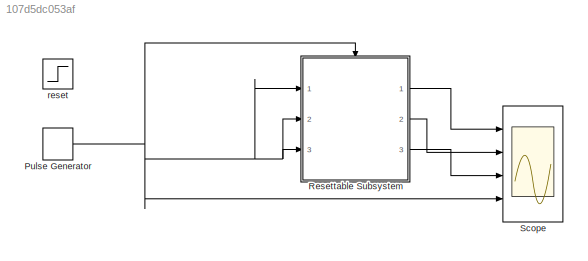
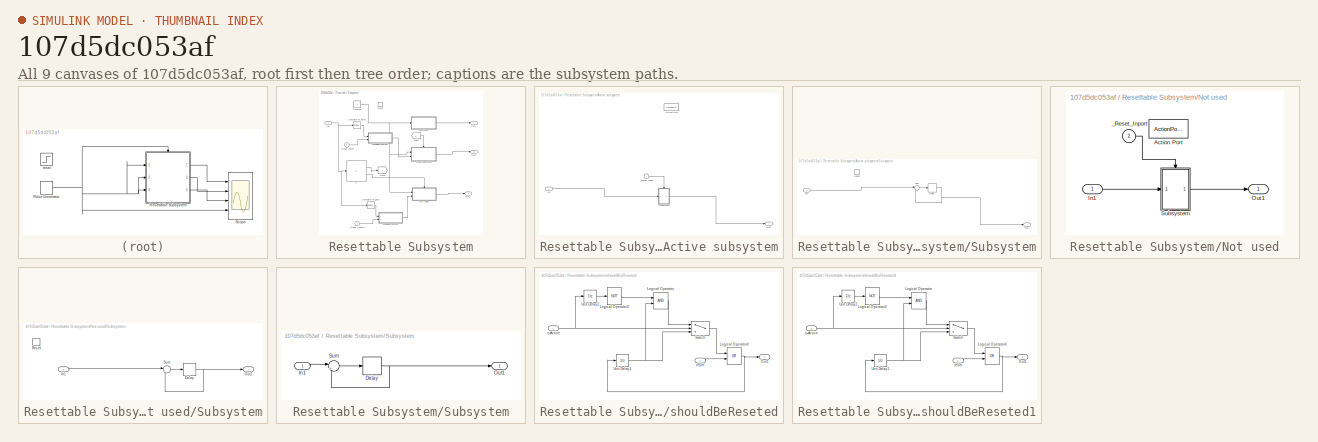
[diagram: thumbnail index - all 9 canvases of the model, root first then tree order]
MODEL slx_107d5dc053af
KIND model
CONFIG AbsTol = auto
CONFIG FixedStep = auto
CONFIG MaxStep = auto
CONFIG MinStep = auto
CONFIG RelTol = 1e-3
CONFIG SampleTimeConstraint = Unconstrained
CONFIG Solver = ode45
CONFIG SolverMode = SingleTasking
CONFIG SolverName = ode45
CONFIG StartTime = 0.0
CONFIG StopTime = 100
BLOCK [DiscretePulseGenerator] Pulse Generator
  Period = 6
  Ports = [0, 1]
  PulseWidth = 3
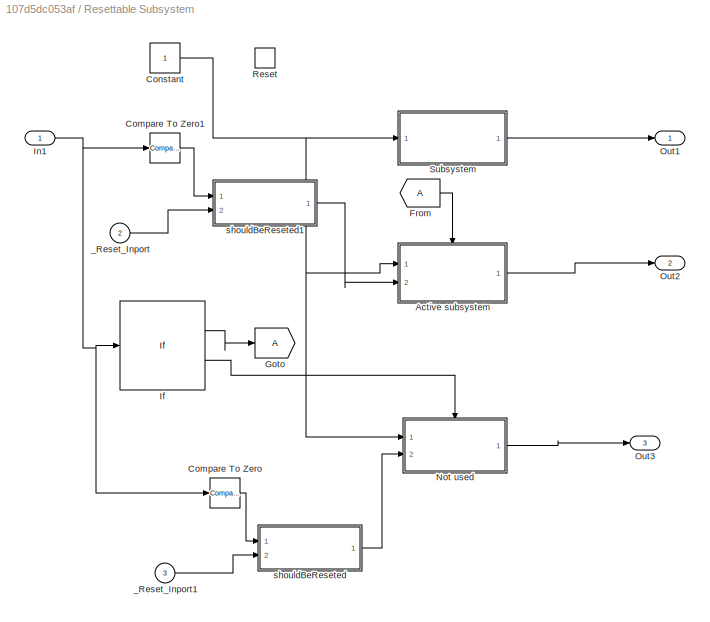
BLOCK [SubSystem] Resettable Subsystem
  Ports = [3, 3, 0, 0, 0, 0, 0, 0, 1]
  RequestExecContextInheritance = off
  TreatAsAtomicUnit = on
  Variant = off
BLOCK [SubSystem] Resettable Subsystem/Active subsystem
  Ports = [2, 1, 0, 0, 0, 0, 0, 1]
  RequestExecContextInheritance = off
  TreatAsAtomicUnit = on
  Variant = off
BLOCK [ActionPort] Resettable Subsystem/Active subsystem/Action Port
  ActionType = then
BLOCK [Inport] Resettable Subsystem/Active subsystem/In1
  IconDisplay = Port number
BLOCK [Outport] Resettable Subsystem/Active subsystem/Out1
  IconDisplay = Port number
BLOCK [SubSystem] Resettable Subsystem/Active subsystem/Subsystem
  Ports = [1, 1, 0, 0, 0, 0, 0, 0, 1]
  RequestExecContextInheritance = off
  Variant = off
BLOCK [Delay] Resettable Subsystem/Active subsystem/Subsystem/Delay
  DelayLength = 1
  InputPortMap = u0
  Ports = [1, 1]
BLOCK [Inport] Resettable Subsystem/Active subsystem/Subsystem/In1
  IconDisplay = Port number
BLOCK [Outport] Resettable Subsystem/Active subsystem/Subsystem/Out1
  IconDisplay = Port number
BLOCK [ResetPort] Resettable Subsystem/Active subsystem/Subsystem/Reset
  DisableCoverage = on
  ResetTriggerType = level hold
BLOCK [Sum] Resettable Subsystem/Active subsystem/Subsystem/Sum
  IconShape = round
  InputSameDT = off
  Inputs = |++
  OutDataTypeStr = Inherit: Inherit via internal rule
  Ports = [2, 1]
  SaturateOnIntegerOverflow = off
BLOCK [Inport] Resettable Subsystem/Active subsystem/_Reset_Inport
  IconDisplay = Port number
  Port = 2
BLOCK [Reference] Resettable Subsystem/Compare To Zero  REF=simulink/Logic and Bit
Operations/Compare
To Zero
  OutDataTypeStr = boolean
  Ports = [1, 1]
  SourceBlock = simulink/Logic and Bit\nOperations/Compare\nTo Zero
  SourceType = Compare To Zero
  ZeroCross = on
  relop = <=
BLOCK [Reference] Resettable Subsystem/Compare To Zero1  REF=simulink/Logic and Bit
Operations/Compare
To Zero
  OutDataTypeStr = boolean
  Ports = [1, 1]
  SourceBlock = simulink/Logic and Bit\nOperations/Compare\nTo Zero
  SourceType = Compare To Zero
  ZeroCross = on
  relop = >
BLOCK [Constant] Resettable Subsystem/Constant
  SampleTime = 1
BLOCK [From] Resettable Subsystem/From
BLOCK [Goto] Resettable Subsystem/Goto
BLOCK [If] Resettable Subsystem/If
  Ports = [1, 2]
BLOCK [Inport] Resettable Subsystem/In1
  IconDisplay = Port number
BLOCK [SubSystem] Resettable Subsystem/Not used
  Ports = [2, 1, 0, 0, 0, 0, 0, 1]
  RequestExecContextInheritance = off
  TreatAsAtomicUnit = on
  Variant = off
BLOCK [ActionPort] Resettable Subsystem/Not used/Action Port
  ActionType = else
BLOCK [Inport] Resettable Subsystem/Not used/In1
  IconDisplay = Port number
BLOCK [Outport] Resettable Subsystem/Not used/Out1
  IconDisplay = Port number
BLOCK [SubSystem] Resettable Subsystem/Not used/Subsystem
  Ports = [1, 1, 0, 0, 0, 0, 0, 0, 1]
  RequestExecContextInheritance = off
  Variant = off
BLOCK [Delay] Resettable Subsystem/Not used/Subsystem/Delay
  DelayLength = 1
  InputPortMap = u0
  Ports = [1, 1]
BLOCK [Inport] Resettable Subsystem/Not used/Subsystem/In1
  IconDisplay = Port number
BLOCK [Outport] Resettable Subsystem/Not used/Subsystem/Out1
  IconDisplay = Port number
BLOCK [ResetPort] Resettable Subsystem/Not used/Subsystem/Reset
  DisableCoverage = on
  ResetTriggerType = level hold
BLOCK [Sum] Resettable Subsystem/Not used/Subsystem/Sum
  IconShape = round
  InputSameDT = off
  Inputs = |++
  OutDataTypeStr = Inherit: Inherit via internal rule
  Ports = [2, 1]
  SaturateOnIntegerOverflow = off
BLOCK [Inport] Resettable Subsystem/Not used/_Reset_Inport
  IconDisplay = Port number
  Port = 2
BLOCK [Outport] Resettable Subsystem/Out1
  IconDisplay = Port number
BLOCK [Outport] Resettable Subsystem/Out2
  IconDisplay = Port number
  Port = 2
BLOCK [Outport] Resettable Subsystem/Out3
  IconDisplay = Port number
  Port = 3
BLOCK [ResetPort] Resettable Subsystem/Reset
  DisableCoverage = on
  ResetTriggerType = level hold
BLOCK [SubSystem] Resettable Subsystem/Subsystem
  Ports = [1, 1]
  RequestExecContextInheritance = off
  Variant = off
BLOCK [Delay] Resettable Subsystem/Subsystem/Delay
  DelayLength = 1
  InputPortMap = u0
  Ports = [1, 1]
BLOCK [Inport] Resettable Subsystem/Subsystem/In1
  IconDisplay = Port number
BLOCK [Outport] Resettable Subsystem/Subsystem/Out1
  IconDisplay = Port number
BLOCK [Sum] Resettable Subsystem/Subsystem/Sum
  IconShape = round
  InputSameDT = off
  Inputs = |++
  OutDataTypeStr = Inherit: Inherit via internal rule
  Ports = [2, 1]
  SaturateOnIntegerOverflow = off
BLOCK [Inport] Resettable Subsystem/_Reset_Inport
  IconDisplay = Port number
  Port = 2
BLOCK [Inport] Resettable Subsystem/_Reset_Inport1
  IconDisplay = Port number
  Port = 3
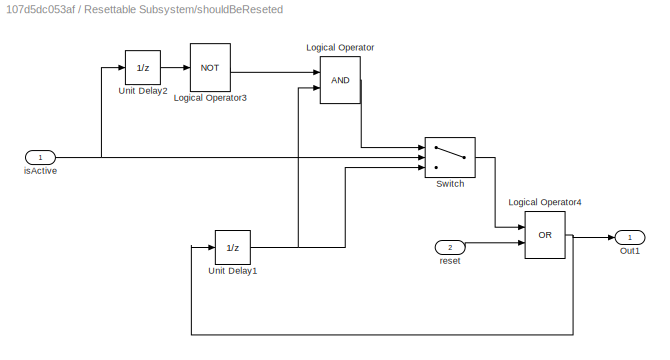
BLOCK [SubSystem] Resettable Subsystem/shouldBeReseted
  Ports = [2, 1]
  RequestExecContextInheritance = off
  Variant = off
BLOCK [Logic] Resettable Subsystem/shouldBeReseted/Logical Operator
  AllPortsSameDT = off
  OutDataTypeStr = boolean
  Ports = [2, 1]
BLOCK [Logic] Resettable Subsystem/shouldBeReseted/Logical Operator3
  AllPortsSameDT = off
  Operator = NOT
  OutDataTypeStr = boolean
  Ports = [1, 1]
BLOCK [Logic] Resettable Subsystem/shouldBeReseted/Logical Operator4
  AllPortsSameDT = off
  Operator = OR
  OutDataTypeStr = boolean
  Ports = [2, 1]
BLOCK [Outport] Resettable Subsystem/shouldBeReseted/Out1
  IconDisplay = Port number
BLOCK [Switch] Resettable Subsystem/shouldBeReseted/Switch
  Criteria = u2 ~= 0
  InputSameDT = off
  SaturateOnIntegerOverflow = off
BLOCK [UnitDelay] Resettable Subsystem/shouldBeReseted/Unit Delay1
  InputProcessing = Elements as channels (sample based)
  SampleTime = -1
BLOCK [UnitDelay] Resettable Subsystem/shouldBeReseted/Unit Delay2
  InputProcessing = Elements as channels (sample based)
  SampleTime = -1
BLOCK [Inport] Resettable Subsystem/shouldBeReseted/isActive
  IconDisplay = Port number
BLOCK [Inport] Resettable Subsystem/shouldBeReseted/reset
  IconDisplay = Port number
  Port = 2
BLOCK [SubSystem] Resettable Subsystem/shouldBeReseted1
  Ports = [2, 1]
  RequestExecContextInheritance = off
  Variant = off
BLOCK [Logic] Resettable Subsystem/shouldBeReseted1/Logical Operator
  AllPortsSameDT = off
  OutDataTypeStr = boolean
  Ports = [2, 1]
BLOCK [Logic] Resettable Subsystem/shouldBeReseted1/Logical Operator3
  AllPortsSameDT = off
  Operator = NOT
  OutDataTypeStr = boolean
  Ports = [1, 1]
BLOCK [Logic] Resettable Subsystem/shouldBeReseted1/Logical Operator4
  AllPortsSameDT = off
  Operator = OR
  OutDataTypeStr = boolean
  Ports = [2, 1]
BLOCK [Outport] Resettable Subsystem/shouldBeReseted1/Out1
  IconDisplay = Port number
BLOCK [Switch] Resettable Subsystem/shouldBeReseted1/Switch
  Criteria = u2 ~= 0
  InputSameDT = off
  SaturateOnIntegerOverflow = off
BLOCK [UnitDelay] Resettable Subsystem/shouldBeReseted1/Unit Delay1
  InputProcessing = Elements as channels (sample based)
  SampleTime = -1
BLOCK [UnitDelay] Resettable Subsystem/shouldBeReseted1/Unit Delay2
  InputProcessing = Elements as channels (sample based)
  SampleTime = -1
BLOCK [Inport] Resettable Subsystem/shouldBeReseted1/isActive
  IconDisplay = Port number
BLOCK [Inport] Resettable Subsystem/shouldBeReseted1/reset
  IconDisplay = Port number
  Port = 2
BLOCK [Scope] Scope
  DataFormat = StructureWithTime
  Decimation = 1
  Grid = on
  LimitDataPoints = off
  MaxDataPoints = 5000
  NumInputPorts = 4
  Ports = [4]
  SampleInput = off
  SampleTime = -1
  SaveName = ScopeData
  SaveToWorkspace = off
  ShowLegends = off
  TickLabels = OneTimeTick
  TimeRange = auto
  YMax = 3.375~3.375~3.375~3.375
  YMin = -0.375~-0.375~-0.375~-0.375
  ZoomMode = on
BLOCK [Step] reset
  SampleTime = .2
  Time = 5
NET Pulse Generator:1 -> Resettable Subsystem:1, Resettable Subsystem:2, Resettable Subsystem:3, Resettable Subsystem:Reset, Scope:4
LINE Resettable Subsystem/Active subsystem/In1:1 -> Resettable Subsystem/Active subsystem/Subsystem:1
NET Resettable Subsystem/Active subsystem/Subsystem/Delay:1 -> Resettable Subsystem/Active subsystem/Subsystem/Out1:1, Resettable Subsystem/Active subsystem/Subsystem/Sum:2
LINE Resettable Subsystem/Active subsystem/Subsystem/In1:1 -> Resettable Subsystem/Active subsystem/Subsystem/Sum:1
LINE Resettable Subsystem/Active subsystem/Subsystem/Sum:1 -> Resettable Subsystem/Active subsystem/Subsystem/Delay:1
LINE Resettable Subsystem/Active subsystem/Subsystem:1 -> Resettable Subsystem/Active subsystem/Out1:1
LINE Resettable Subsystem/Active subsystem/_Reset_Inport:1 -> Resettable Subsystem/Active subsystem/Subsystem:Reset
LINE Resettable Subsystem/Active subsystem:1 -> Resettable Subsystem/Out2:1
LINE Resettable Subsystem/Compare To Zero1:1 -> Resettable Subsystem/shouldBeReseted1:1
LINE Resettable Subsystem/Compare To Zero:1 -> Resettable Subsystem/shouldBeReseted:1
NET Resettable Subsystem/Constant:1 -> Resettable Subsystem/Active subsystem:1, Resettable Subsystem/Not used:1, Resettable Subsystem/Subsystem:1
LINE Resettable Subsystem/From:1 -> Resettable Subsystem/Active subsystem:ifaction
LINE Resettable Subsystem/If:1 -> Resettable Subsystem/Goto:1
LINE Resettable Subsystem/If:2 -> Resettable Subsystem/Not used:ifaction
NET Resettable Subsystem/In1:1 -> Resettable Subsystem/Compare To Zero1:1, Resettable Subsystem/Compare To Zero:1, Resettable Subsystem/If:1
LINE Resettable Subsystem/Not used/In1:1 -> Resettable Subsystem/Not used/Subsystem:1
NET Resettable Subsystem/Not used/Subsystem/Delay:1 -> Resettable Subsystem/Not used/Subsystem/Out1:1, Resettable Subsystem/Not used/Subsystem/Sum:2
LINE Resettable Subsystem/Not used/Subsystem/In1:1 -> Resettable Subsystem/Not used/Subsystem/Sum:1
LINE Resettable Subsystem/Not used/Subsystem/Sum:1 -> Resettable Subsystem/Not used/Subsystem/Delay:1
LINE Resettable Subsystem/Not used/Subsystem:1 -> Resettable Subsystem/Not used/Out1:1
LINE Resettable Subsystem/Not used/_Reset_Inport:1 -> Resettable Subsystem/Not used/Subsystem:Reset
LINE Resettable Subsystem/Not used:1 -> Resettable Subsystem/Out3:1
NET Resettable Subsystem/Subsystem/Delay:1 -> Resettable Subsystem/Subsystem/Out1:1, Resettable Subsystem/Subsystem/Sum:2
LINE Resettable Subsystem/Subsystem/In1:1 -> Resettable Subsystem/Subsystem/Sum:1
LINE Resettable Subsystem/Subsystem/Sum:1 -> Resettable Subsystem/Subsystem/Delay:1
LINE Resettable Subsystem/Subsystem:1 -> Resettable Subsystem/Out1:1
LINE Resettable Subsystem/_Reset_Inport1:1 -> Resettable Subsystem/shouldBeReseted:2
LINE Resettable Subsystem/_Reset_Inport:1 -> Resettable Subsystem/shouldBeReseted1:2
LINE Resettable Subsystem/shouldBeReseted/Logical Operator3:1 -> Resettable Subsystem/shouldBeReseted/Logical Operator:1
NET Resettable Subsystem/shouldBeReseted/Logical Operator4:1 -> Resettable Subsystem/shouldBeReseted/Out1:1, Resettable Subsystem/shouldBeReseted/Unit Delay1:1
LINE Resettable Subsystem/shouldBeReseted/Logical Operator:1 -> Resettable Subsystem/shouldBeReseted/Switch:1
LINE Resettable Subsystem/shouldBeReseted/Switch:1 -> Resettable Subsystem/shouldBeReseted/Logical Operator4:1
NET Resettable Subsystem/shouldBeReseted/Unit Delay1:1 -> Resettable Subsystem/shouldBeReseted/Logical Operator:2, Resettable Subsystem/shouldBeReseted/Switch:3
LINE Resettable Subsystem/shouldBeReseted/Unit Delay2:1 -> Resettable Subsystem/shouldBeReseted/Logical Operator3:1
NET Resettable Subsystem/shouldBeReseted/isActive:1 -> Resettable Subsystem/shouldBeReseted/Switch:2, Resettable Subsystem/shouldBeReseted/Unit Delay2:1
LINE Resettable Subsystem/shouldBeReseted/reset:1 -> Resettable Subsystem/shouldBeReseted/Logical Operator4:2
LINE Resettable Subsystem/shouldBeReseted1/Logical Operator3:1 -> Resettable Subsystem/shouldBeReseted1/Logical Operator:1
NET Resettable Subsystem/shouldBeReseted1/Logical Operator4:1 -> Resettable Subsystem/shouldBeReseted1/Out1:1, Resettable Subsystem/shouldBeReseted1/Unit Delay1:1
LINE Resettable Subsystem/shouldBeReseted1/Logical Operator:1 -> Resettable Subsystem/shouldBeReseted1/Switch:1
LINE Resettable Subsystem/shouldBeReseted1/Switch:1 -> Resettable Subsystem/shouldBeReseted1/Logical Operator4:1
NET Resettable Subsystem/shouldBeReseted1/Unit Delay1:1 -> Resettable Subsystem/shouldBeReseted1/Logical Operator:2, Resettable Subsystem/shouldBeReseted1/Switch:3
LINE Resettable Subsystem/shouldBeReseted1/Unit Delay2:1 -> Resettable Subsystem/shouldBeReseted1/Logical Operator3:1
NET Resettable Subsystem/shouldBeReseted1/isActive:1 -> Resettable Subsystem/shouldBeReseted1/Switch:2, Resettable Subsystem/shouldBeReseted1/Unit Delay2:1
LINE Resettable Subsystem/shouldBeReseted1/reset:1 -> Resettable Subsystem/shouldBeReseted1/Logical Operator4:2
LINE Resettable Subsystem/shouldBeReseted1:1 -> Resettable Subsystem/Active subsystem:2
LINE Resettable Subsystem/shouldBeReseted:1 -> Resettable Subsystem/Not used:2
LINE Resettable Subsystem:1 -> Scope:1
LINE Resettable Subsystem:2 -> Scope:2
LINE Resettable Subsystem:3 -> Scope:3
note: NET lines group one-source signal fan-out (src -> all destinations, sorted); 1:1 wires keep LINE
